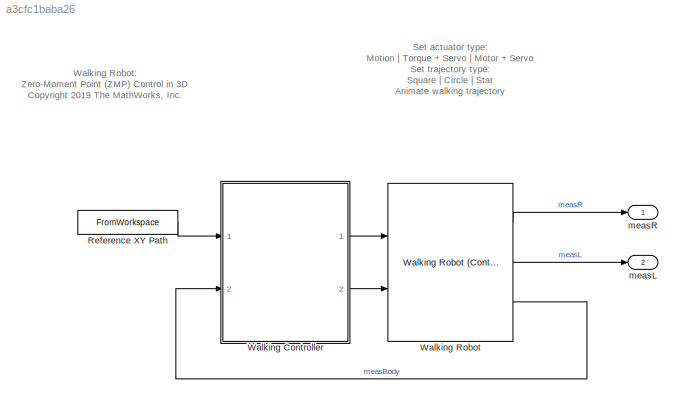
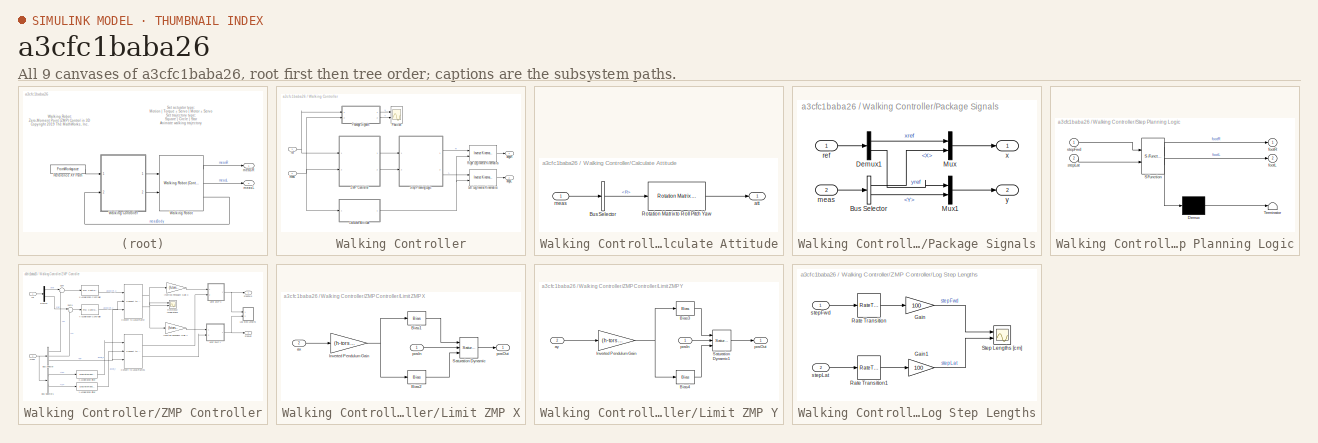
[diagram: thumbnail index - all 9 canvases of the model, root first then tree order]
MODEL slx_a3cfc1baba26
KIND model
CONFIG AbsTol = auto
CONFIG EnableMultiTasking = on
CONFIG FixedStep = auto
CONFIG MaxStep = auto
CONFIG MinStep = auto
CONFIG PreLoadFcn = robotParametersCtrl\n
CONFIG RelTol = 1e-2
CONFIG SampleTimeConstraint = Unconstrained
CONFIG Solver = ode15s
CONFIG SolverName = ode15s
CONFIG StartTime = 0.0
CONFIG StopTime = 70
BLOCK [FromWorkspace] Reference XY Path
  OutputAfterFinalValue = Holding final value
  SampleTime = TsCtrl
  VariableName = [pathT,pathX,pathY]
  ZeroCross = on
BLOCK [SubSystem] Walking Controller
  Ports = [2, 2]
  RequestExecContextInheritance = off
BLOCK [SubSystem] Walking Controller/Calculate Attitude
  Ports = [1, 1]
  RequestExecContextInheritance = off
BLOCK [BusSelector] Walking Controller/Calculate Attitude/Bus Selector
  OutputAsBus = off
  OutputSignals = R
  Ports = [1, 1]
BLOCK [Reference] Walking Controller/Calculate Attitude/Rotation Matrix to Roll Pitch Yaw  REF=walkingRobotUtils/Rotation Matrix to 
Roll Pitch Yaw
  Ports = [1, 1]
  SourceBlock = walkingRobotUtils/Rotation Matrix to \nRoll Pitch Yaw
  SourceType = SubSystem
BLOCK [Outport] Walking Controller/Calculate Attitude/att
  IconDisplay = Port number
BLOCK [Inport] Walking Controller/Calculate Attitude/meas
  IconDisplay = Port number
BLOCK [Reference] Walking Controller/Left Leg Inverse Kinematics  REF=walkingRobotUtils/Inverse Kinematics
(Control Design)
  Ports = [2, 1]
  SourceBlock = walkingRobotUtils/Inverse Kinematics\n(Control Design)
  SourceType = SubSystem
BLOCK [SubSystem] Walking Controller/Package Signals
  Ports = [2, 2]
  RequestExecContextInheritance = off
BLOCK [BusSelector] Walking Controller/Package Signals/Bus Selector
  OutputAsBus = off
  OutputSignals = X,Y
  Ports = [1, 2]
BLOCK [Demux] Walking Controller/Package Signals/Demux1
  DisplayOption = bar
  Outputs = 2
  Ports = [1, 2]
BLOCK [Mux] Walking Controller/Package Signals/Mux
  DisplayOption = bar
  Inputs = 2
  Ports = [2, 1]
BLOCK [Mux] Walking Controller/Package Signals/Mux1
  DisplayOption = bar
  Inputs = 2
  Ports = [2, 1]
BLOCK [Inport] Walking Controller/Package Signals/meas
  IconDisplay = Port number
  Port = 2
BLOCK [Inport] Walking Controller/Package Signals/ref
  IconDisplay = Port number
BLOCK [Outport] Walking Controller/Package Signals/x
  IconDisplay = Port number
BLOCK [Outport] Walking Controller/Package Signals/y
  IconDisplay = Port number
  Port = 2
BLOCK [Scope] Walking Controller/Position
  Floating = off
  NumInputPorts = 2
  Ports = [2]
  ScopeSpecificationString = Simulink.scopes.TimeScopeBlockCfg('CurrentConfiguration', extmgr.ConfigurationSet(extmgr.Configuration('Core','General UI',true),extmgr.Configuration('Core','Source UI',true),extmgr.Configuration('Sources','WiredSimulink',true,'DataLoggingVariableName','ScopeData1'),extmgr.Configuration('Visuals','Time Domain',true,'SerializedDisplays',{struct('MinYLimReal','-0.12852','MaxYLimReal','1.15665','YLab...<+2143ch>
BLOCK [Reference] Walking Controller/Right Leg Inverse Kinematics  REF=walkingRobotUtils/Inverse Kinematics
(Control Design)
  Ports = [2, 1]
  SourceBlock = walkingRobotUtils/Inverse Kinematics\n(Control Design)
  SourceType = SubSystem
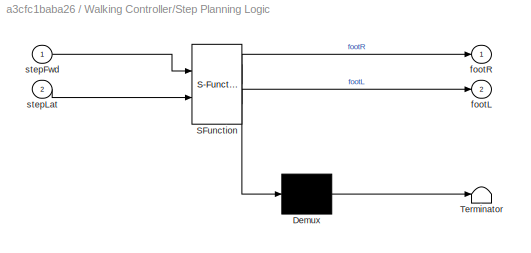
BLOCK [SubSystem] Walking Controller/Step Planning Logic
  ErrorFcn = Stateflow.Translate.translate
  PermitHierarchicalResolution = ExplicitOnly
  Ports = [2, 2]
  RequestExecContextInheritance = off
  SFBlockType = Chart
  TreatAsAtomicUnit = on
BLOCK [Demux] Walking Controller/Step Planning Logic/ Demux 
  Outputs = 1
  Ports = [1, 1]
BLOCK [S-Function] Walking Controller/Step Planning Logic/ SFunction 
  EnableBusSupport = on
  FunctionName = sf_sfun
  Parameters = Kwalk,h,stepHeight,tWalk
  PortCounts = [2 3]
  Ports = [2, 3]
  SFcnIsStateOwnerBlock = off
  SFunctionDeploymentMode = off
  Tag = Stateflow S-Function 4
BLOCK [Terminator] Walking Controller/Step Planning Logic/ Terminator 
BLOCK [Outport] Walking Controller/Step Planning Logic/footL
  IconDisplay = Port number
  Port = 2
BLOCK [Outport] Walking Controller/Step Planning Logic/footR
  IconDisplay = Port number
BLOCK [Inport] Walking Controller/Step Planning Logic/stepFwd
  IconDisplay = Port number
BLOCK [Inport] Walking Controller/Step Planning Logic/stepLat
  IconDisplay = Port number
  Port = 2
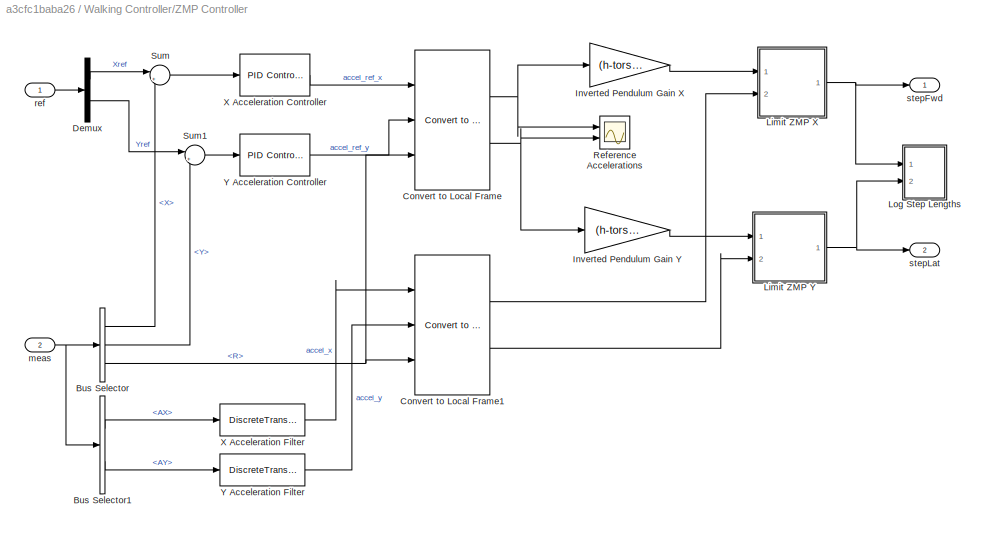
BLOCK [SubSystem] Walking Controller/ZMP Controller
  Ports = [2, 2]
  RequestExecContextInheritance = off
BLOCK [BusSelector] Walking Controller/ZMP Controller/Bus Selector
  OutputAsBus = off
  OutputSignals = X,Y,R
  Ports = [1, 3]
BLOCK [BusSelector] Walking Controller/ZMP Controller/Bus Selector1
  OutputAsBus = off
  OutputSignals = AX,AY
  Ports = [1, 2]
BLOCK [Reference] Walking Controller/ZMP Controller/Convert to Local Frame  REF=walkingRobotUtils/Convert to Local Frame
  Ports = [3, 2]
  SourceBlock = walkingRobotUtils/Convert to Local Frame
  SourceType = SubSystem
BLOCK [Reference] Walking Controller/ZMP Controller/Convert to Local Frame1  REF=walkingRobotUtils/Convert to Local Frame
  Ports = [3, 2]
  SourceBlock = walkingRobotUtils/Convert to Local Frame
  SourceType = SubSystem
BLOCK [Demux] Walking Controller/ZMP Controller/Demux
  DisplayOption = bar
  Outputs = 2
  Ports = [1, 2]
BLOCK [Gain] Walking Controller/ZMP Controller/Inverted Pendulum Gain X
  Gain = (h-torso_offset_z)/(g*100)
  OutDataTypeStr = Inherit: Inherit via internal rule
  ParamDataTypeStr = Inherit: Inherit via internal rule
  SaturateOnIntegerOverflow = off
BLOCK [Gain] Walking Controller/ZMP Controller/Inverted Pendulum Gain Y
  Gain = (h-torso_offset_z)/(g*100)
  OutDataTypeStr = Inherit: Inherit via internal rule
  ParamDataTypeStr = Inherit: Inherit via internal rule
  SaturateOnIntegerOverflow = off
BLOCK [SubSystem] Walking Controller/ZMP Controller/Limit ZMP X
  Ports = [2, 1]
  RequestExecContextInheritance = off
BLOCK [Bias] Walking Controller/ZMP Controller/Limit ZMP X/Bias1
  Bias = 0.9*(foot_x/2)/100
  SaturateOnIntegerOverflow = off
BLOCK [Bias] Walking Controller/ZMP Controller/Limit ZMP X/Bias2
  Bias = -0.9*(foot_x/2)/100
  SaturateOnIntegerOverflow = off
BLOCK [Gain] Walking Controller/ZMP Controller/Limit ZMP X/Inverted Pendulum Gain
  Gain = (h-torso_offset_z)/(g*100)
  OutDataTypeStr = Inherit: Inherit via internal rule
  ParamDataTypeStr = Inherit: Inherit via internal rule
  SaturateOnIntegerOverflow = off
BLOCK [Reference] Walking Controller/ZMP Controller/Limit ZMP X/Saturation Dynamic  REF=simulink/Discontinuities/Saturation
Dynamic
  Ports = [3, 1]
  SourceBlock = simulink/Discontinuities/Saturation\nDynamic
  SourceProductBaseCode = SL
  SourceProductName = Simulink
  SourceType = Saturation Dynamic
BLOCK [Inport] Walking Controller/ZMP Controller/Limit ZMP X/ax
  IconDisplay = Port number
  Port = 2
BLOCK [Inport] Walking Controller/ZMP Controller/Limit ZMP X/posIn
  IconDisplay = Port number
BLOCK [Outport] Walking Controller/ZMP Controller/Limit ZMP X/posOut
  IconDisplay = Port number
BLOCK [SubSystem] Walking Controller/ZMP Controller/Limit ZMP Y
  Ports = [2, 1]
  RequestExecContextInheritance = off
BLOCK [Bias] Walking Controller/ZMP Controller/Limit ZMP Y/Bias3
  Bias = 0.9*(foot_y/2)/100
  SaturateOnIntegerOverflow = off
BLOCK [Bias] Walking Controller/ZMP Controller/Limit ZMP Y/Bias4
  Bias = -0.9*(foot_y/2)/100
  SaturateOnIntegerOverflow = off
BLOCK [Gain] Walking Controller/ZMP Controller/Limit ZMP Y/Inverted Pendulum Gain
  Gain = (h-torso_offset_z)/(g*100)
  OutDataTypeStr = Inherit: Inherit via internal rule
  ParamDataTypeStr = Inherit: Inherit via internal rule
  SaturateOnIntegerOverflow = off
BLOCK [Reference] Walking Controller/ZMP Controller/Limit ZMP Y/Saturation Dynamic1  REF=simulink/Discontinuities/Saturation
Dynamic
  Ports = [3, 1]
  SourceBlock = simulink/Discontinuities/Saturation\nDynamic
  SourceProductBaseCode = SL
  SourceProductName = Simulink
  SourceType = Saturation Dynamic
BLOCK [Inport] Walking Controller/ZMP Controller/Limit ZMP Y/ay
  IconDisplay = Port number
  Port = 2
BLOCK [Inport] Walking Controller/ZMP Controller/Limit ZMP Y/posIn
  IconDisplay = Port number
BLOCK [Outport] Walking Controller/ZMP Controller/Limit ZMP Y/posOut
  IconDisplay = Port number
BLOCK [SubSystem] Walking Controller/ZMP Controller/Log Step Lengths
  Ports = [2]
  RequestExecContextInheritance = off
BLOCK [Gain] Walking Controller/ZMP Controller/Log Step Lengths/Gain
  Gain = 100
  OutDataTypeStr = Inherit: Inherit via internal rule
  ParamDataTypeStr = Inherit: Inherit via internal rule
  SaturateOnIntegerOverflow = off
BLOCK [Gain] Walking Controller/ZMP Controller/Log Step Lengths/Gain1
  Gain = 100
  OutDataTypeStr = Inherit: Inherit via internal rule
  ParamDataTypeStr = Inherit: Inherit via internal rule
  SaturateOnIntegerOverflow = off
BLOCK [RateTransition] Walking Controller/ZMP Controller/Log Step Lengths/Rate Transition
  OutPortSampleTime = tWalk
BLOCK [RateTransition] Walking Controller/ZMP Controller/Log Step Lengths/Rate Transition1
  OutPortSampleTime = tWalk
BLOCK [Scope] Walking Controller/ZMP Controller/Log Step Lengths/Step Lengths [cm]
  Floating = off
  NumInputPorts = 2
  Ports = [2]
  ScopeSpecificationString = Simulink.scopes.TimeScopeBlockCfg('CurrentConfiguration', extmgr.ConfigurationSet(extmgr.Configuration('Core','General UI',true),extmgr.Configuration('Core','Source UI',true),extmgr.Configuration('Sources','WiredSimulink',true,'DataLoggingVariableName','ScopeData2'),extmgr.Configuration('Visuals','Time Domain',true,'SerializedDisplays',{struct('MinYLimReal','-0.18147','MaxYLimReal','1.48184','YLab...<+2066ch>
BLOCK [Inport] Walking Controller/ZMP Controller/Log Step Lengths/stepFwd
  IconDisplay = Port number
BLOCK [Inport] Walking Controller/ZMP Controller/Log Step Lengths/stepLat
  IconDisplay = Port number
  Port = 2
BLOCK [Scope] Walking Controller/ZMP Controller/Reference Accelerations
  Floating = off
  NumInputPorts = 2
  Ports = [2]
  ScopeSpecificationString = Simulink.scopes.TimeScopeBlockCfg('CurrentConfiguration', extmgr.ConfigurationSet(extmgr.Configuration('Core','General UI',true),extmgr.Configuration('Core','Source UI',true),extmgr.Configuration('Sources','WiredSimulink',true,'DataLoggingVariableName','ScopeData1'),extmgr.Configuration('Visuals','Time Domain',true,'SerializedDisplays',{struct('MinYLimReal','-0.11241','MaxYLimReal','0.86744','YLab...<+2100ch>
BLOCK [Sum] Walking Controller/ZMP Controller/Sum
  IconShape = round
  InputSameDT = off
  Inputs = |+-
  OutDataTypeStr = Inherit: Inherit via internal rule
  Ports = [2, 1]
  SaturateOnIntegerOverflow = off
BLOCK [Sum] Walking Controller/ZMP Controller/Sum1
  IconShape = round
  InputSameDT = off
  Inputs = |+-
  OutDataTypeStr = Inherit: Inherit via internal rule
  Ports = [2, 1]
  SaturateOnIntegerOverflow = off
BLOCK [Reference] Walking Controller/ZMP Controller/X Acceleration Controller  REF=simulink/Continuous/PID Controller
  Ports = [1, 1]
  SourceBlock = simulink/Continuous/PID Controller
  SourceProductBaseCode = SL
  SourceProductName = Simulink
  SourceType = PID 1dof
BLOCK [DiscreteTransferFcn] Walking Controller/ZMP Controller/X Acceleration Filter
  Denominator = [1 -0.9753]
  InputPortMap = u0
  Numerator = [-1*0.02469]
  Ports = [1, 1]
BLOCK [Reference] Walking Controller/ZMP Controller/Y Acceleration Controller  REF=simulink/Continuous/PID Controller
  Ports = [1, 1]
  SourceBlock = simulink/Continuous/PID Controller
  SourceProductBaseCode = SL
  SourceProductName = Simulink
  SourceType = PID 1dof
BLOCK [DiscreteTransferFcn] Walking Controller/ZMP Controller/Y Acceleration Filter
  Denominator = [1 -0.9753]
  InputPortMap = u0
  Numerator = [-1*0.02469]
  Ports = [1, 1]
BLOCK [Inport] Walking Controller/ZMP Controller/meas 
  IconDisplay = Port number
  Port = 2
BLOCK [Inport] Walking Controller/ZMP Controller/ref
  IconDisplay = Port number
BLOCK [Outport] Walking Controller/ZMP Controller/stepFwd
  IconDisplay = Port number
BLOCK [Outport] Walking Controller/ZMP Controller/stepLat
  IconDisplay = Port number
  Port = 2
BLOCK [Outport] Walking Controller/angsL
  IconDisplay = Port number
  Port = 2
BLOCK [Outport] Walking Controller/angsR
  IconDisplay = Port number
BLOCK [Inport] Walking Controller/meas
  IconDisplay = Port number
  Port = 2
BLOCK [Inport] Walking Controller/ref
  IconDisplay = Port number
BLOCK [Reference] Walking Robot  REF=walkingRobotUtils/Walking Robot
(Control Design)
  Ports = [2, 3]
  SourceBlock = walkingRobotUtils/Walking Robot\n(Control Design)
  SourceType = SubSystem
BLOCK [Outport] measL
  IconDisplay = Port number
  Port = 2
BLOCK [Outport] measR
  IconDisplay = Port number
ANNOTATION (root): Set actuator type: Motion | Torque + Servo | Motor + Servo Set trajectory type: Square | Circle | Star Animate walking trajectory
ANNOTATION (root): Walking Robot: Zero-Moment Point (ZMP) Control in 3D <copyright redacted>
LINE Reference XY Path:1 -> Walking Controller:1
LINE Walking Controller/Calculate Attitude/Bus Selector:1 -> Walking Controller/Calculate Attitude/Rotation Matrix to Roll Pitch Yaw:1
LINE Walking Controller/Calculate Attitude/Rotation Matrix to Roll Pitch Yaw:1 -> Walking Controller/Calculate Attitude/att:1
LINE Walking Controller/Calculate Attitude/meas:1 -> Walking Controller/Calculate Attitude/Bus Selector:1
NET Walking Controller/Calculate Attitude:1 -> Walking Controller/Left Leg Inverse Kinematics:2, Walking Controller/Right Leg Inverse Kinematics:2
LINE Walking Controller/Left Leg Inverse Kinematics:1 -> Walking Controller/angsL:1
LINE Walking Controller/Package Signals/Bus Selector:1 -> Walking Controller/Package Signals/Mux:2
LINE Walking Controller/Package Signals/Bus Selector:2 -> Walking Controller/Package Signals/Mux1:2
LINE Walking Controller/Package Signals/Demux1:1 -> Walking Controller/Package Signals/Mux:1
LINE Walking Controller/Package Signals/Demux1:2 -> Walking Controller/Package Signals/Mux1:1
LINE Walking Controller/Package Signals/Mux1:1 -> Walking Controller/Package Signals/y:1
LINE Walking Controller/Package Signals/Mux:1 -> Walking Controller/Package Signals/x:1
LINE Walking Controller/Package Signals/meas:1 -> Walking Controller/Package Signals/Bus Selector:1
LINE Walking Controller/Package Signals/ref:1 -> Walking Controller/Package Signals/Demux1:1
LINE Walking Controller/Package Signals:1 -> Walking Controller/Position:1
LINE Walking Controller/Package Signals:2 -> Walking Controller/Position:2
LINE Walking Controller/Right Leg Inverse Kinematics:1 -> Walking Controller/angsR:1
LINE Walking Controller/Step Planning Logic:1 -> Walking Controller/Right Leg Inverse Kinematics:1
LINE Walking Controller/Step Planning Logic:2 -> Walking Controller/Left Leg Inverse Kinematics:1
LINE Walking Controller/ZMP Controller/Bus Selector1:1 -> Walking Controller/ZMP Controller/X Acceleration Filter:1
LINE Walking Controller/ZMP Controller/Bus Selector1:2 -> Walking Controller/ZMP Controller/Y Acceleration Filter:1
LINE Walking Controller/ZMP Controller/Bus Selector:1 -> Walking Controller/ZMP Controller/Sum:2
LINE Walking Controller/ZMP Controller/Bus Selector:2 -> Walking Controller/ZMP Controller/Sum1:2
NET Walking Controller/ZMP Controller/Bus Selector:3 -> Walking Controller/ZMP Controller/Convert to Local Frame1:3, Walking Controller/ZMP Controller/Convert to Local Frame:3
LINE Walking Controller/ZMP Controller/Convert to Local Frame1:1 -> Walking Controller/ZMP Controller/Limit ZMP X:2
LINE Walking Controller/ZMP Controller/Convert to Local Frame1:2 -> Walking Controller/ZMP Controller/Limit ZMP Y:2
NET Walking Controller/ZMP Controller/Convert to Local Frame:1 -> Walking Controller/ZMP Controller/Inverted Pendulum Gain X:1, Walking Controller/ZMP Controller/Reference Accelerations:1
NET Walking Controller/ZMP Controller/Convert to Local Frame:2 -> Walking Controller/ZMP Controller/Inverted Pendulum Gain Y:1, Walking Controller/ZMP Controller/Reference Accelerations:2
LINE Walking Controller/ZMP Controller/Demux:1 -> Walking Controller/ZMP Controller/Sum:1
LINE Walking Controller/ZMP Controller/Demux:2 -> Walking Controller/ZMP Controller/Sum1:1
LINE Walking Controller/ZMP Controller/Inverted Pendulum Gain X:1 -> Walking Controller/ZMP Controller/Limit ZMP X:1
LINE Walking Controller/ZMP Controller/Inverted Pendulum Gain Y:1 -> Walking Controller/ZMP Controller/Limit ZMP Y:1
LINE Walking Controller/ZMP Controller/Limit ZMP X/Bias1:1 -> Walking Controller/ZMP Controller/Limit ZMP X/Saturation Dynamic:1
LINE Walking Controller/ZMP Controller/Limit ZMP X/Bias2:1 -> Walking Controller/ZMP Controller/Limit ZMP X/Saturation Dynamic:3
NET Walking Controller/ZMP Controller/Limit ZMP X/Inverted Pendulum Gain:1 -> Walking Controller/ZMP Controller/Limit ZMP X/Bias1:1, Walking Controller/ZMP Controller/Limit ZMP X/Bias2:1
LINE Walking Controller/ZMP Controller/Limit ZMP X/Saturation Dynamic:1 -> Walking Controller/ZMP Controller/Limit ZMP X/posOut:1
LINE Walking Controller/ZMP Controller/Limit ZMP X/ax:1 -> Walking Controller/ZMP Controller/Limit ZMP X/Inverted Pendulum Gain:1
LINE Walking Controller/ZMP Controller/Limit ZMP X/posIn:1 -> Walking Controller/ZMP Controller/Limit ZMP X/Saturation Dynamic:2
NET Walking Controller/ZMP Controller/Limit ZMP X:1 -> Walking Controller/ZMP Controller/Log Step Lengths:1, Walking Controller/ZMP Controller/stepFwd:1
LINE Walking Controller/ZMP Controller/Limit ZMP Y/Bias3:1 -> Walking Controller/ZMP Controller/Limit ZMP Y/Saturation Dynamic1:1
LINE Walking Controller/ZMP Controller/Limit ZMP Y/Bias4:1 -> Walking Controller/ZMP Controller/Limit ZMP Y/Saturation Dynamic1:3
NET Walking Controller/ZMP Controller/Limit ZMP Y/Inverted Pendulum Gain:1 -> Walking Controller/ZMP Controller/Limit ZMP Y/Bias3:1, Walking Controller/ZMP Controller/Limit ZMP Y/Bias4:1
LINE Walking Controller/ZMP Controller/Limit ZMP Y/Saturation Dynamic1:1 -> Walking Controller/ZMP Controller/Limit ZMP Y/posOut:1
LINE Walking Controller/ZMP Controller/Limit ZMP Y/ay:1 -> Walking Controller/ZMP Controller/Limit ZMP Y/Inverted Pendulum Gain:1
LINE Walking Controller/ZMP Controller/Limit ZMP Y/posIn:1 -> Walking Controller/ZMP Controller/Limit ZMP Y/Saturation Dynamic1:2
NET Walking Controller/ZMP Controller/Limit ZMP Y:1 -> Walking Controller/ZMP Controller/Log Step Lengths:2, Walking Controller/ZMP Controller/stepLat:1
LINE Walking Controller/ZMP Controller/Log Step Lengths/Gain1:1 -> Walking Controller/ZMP Controller/Log Step Lengths/Step Lengths [cm]:2
LINE Walking Controller/ZMP Controller/Log Step Lengths/Gain:1 -> Walking Controller/ZMP Controller/Log Step Lengths/Step Lengths [cm]:1
LINE Walking Controller/ZMP Controller/Log Step Lengths/Rate Transition1:1 -> Walking Controller/ZMP Controller/Log Step Lengths/Gain1:1
LINE Walking Controller/ZMP Controller/Log Step Lengths/Rate Transition:1 -> Walking Controller/ZMP Controller/Log Step Lengths/Gain:1
LINE Walking Controller/ZMP Controller/Log Step Lengths/stepFwd:1 -> Walking Controller/ZMP Controller/Log Step Lengths/Rate Transition:1
LINE Walking Controller/ZMP Controller/Log Step Lengths/stepLat:1 -> Walking Controller/ZMP Controller/Log Step Lengths/Rate Transition1:1
LINE Walking Controller/ZMP Controller/Sum1:1 -> Walking Controller/ZMP Controller/Y Acceleration Controller:1
LINE Walking Controller/ZMP Controller/Sum:1 -> Walking Controller/ZMP Controller/X Acceleration Controller:1
LINE Walking Controller/ZMP Controller/X Acceleration Controller:1 -> Walking Controller/ZMP Controller/Convert to Local Frame:1
LINE Walking Controller/ZMP Controller/X Acceleration Filter:1 -> Walking Controller/ZMP Controller/Convert to Local Frame1:1
LINE Walking Controller/ZMP Controller/Y Acceleration Controller:1 -> Walking Controller/ZMP Controller/Convert to Local Frame:2
LINE Walking Controller/ZMP Controller/Y Acceleration Filter:1 -> Walking Controller/ZMP Controller/Convert to Local Frame1:2
NET Walking Controller/ZMP Controller/meas :1 -> Walking Controller/ZMP Controller/Bus Selector1:1, Walking Controller/ZMP Controller/Bus Selector:1
LINE Walking Controller/ZMP Controller/ref:1 -> Walking Controller/ZMP Controller/Demux:1
LINE Walking Controller/ZMP Controller:1 -> Walking Controller/Step Planning Logic:1
LINE Walking Controller/ZMP Controller:2 -> Walking Controller/Step Planning Logic:2
NET Walking Controller/meas:1 -> Walking Controller/Calculate Attitude:1, Walking Controller/Package Signals:2, Walking Controller/ZMP Controller:2
NET Walking Controller/ref:1 -> Walking Controller/Package Signals:1, Walking Controller/ZMP Controller:1
LINE Walking Controller:1 -> Walking Robot:1
LINE Walking Controller:2 -> Walking Robot:2
LINE Walking Robot:1 -> measR:1
LINE Walking Robot:2 -> measL:1
LINE Walking Robot:3 -> Walking Controller:2
note: NET lines group one-source signal fan-out (src -> all destinations, sorted); 1:1 wires keep LINE
CHART Walking Controller/Step Planning Logic states=7 transitions=4
  STATE_LABEL 'control'
  STATE_LABEL '{\nxR = xR + Kwalk*(xrefR-xR);\nyR = yR + Kwalk*(yrefR-yR);\nzR = zR + Kwalk*(zrefR-zR);\nxL = xL + Kwalk*(xrefL-xL);\nyL = yL + Kwalk*(yrefL-yL);\nzL = zL + Kwalk*(zrefL-zL);\nfootR = [xR;yR;zR];\nfootL = [xL;yL;zL];\n}'
  STATE_LABEL 'RightStep\n% Right foot is active\n% Left foot drags\nen, du:\ncontrol;\n'
  STATE_LABEL 'RightFoot\nen,du:\nzrefL = low;\nxrefR = stepFwd;\nyrefR = min(0,stepLat);\nzrefR = high;\non after(0.5*tWalk,sec):\nzrefR = low;'
  STATE_LABEL 'LeftFoot\nen,du:\nxrefL = -xrefR;\nyrefL = -min(stepLat,0);'
  STATE_LABEL 'RightFoot\nen,du:\nzrefL = low;\nxrefR = stepFwd;\nyrefR = min(0,stepLat);\nzrefR = high;\non after(0.5*tWalk,sec):\nzrefR = low;'
  STATE_LABEL 'LeftFoot\nen,du:\nxrefL = -xrefR;\nyrefL = -min(stepLat,0);'
  STATE_LABEL 'LeftStep\n% Left foot is active\n% Right foot drags\nen, du:\ncontrol;'
  STATE_LABEL 'RightFoot\nen,du:\nxrefR = -xrefL;\nyrefR = -max(0,stepLat);'
  STATE_LABEL 'LeftFoot\nen,du:\nzrefR = low;\nxrefL = stepFwd;\nyrefL = max(0,stepLat);\nzrefL = high;\non after(0.5*tWalk,sec):\nzrefL = low;'
  STATE_LABEL 'RightFoot\nen,du:\nxrefR = -xrefL;\nyrefR = -max(0,stepLat);'
  STATE_LABEL 'LeftFoot\nen,du:\nzrefR = low;\nxrefL = stepFwd;\nyrefL = max(0,stepLat);\nzrefL = high;\non after(0.5*tWalk,sec):\nzrefL = low;'
